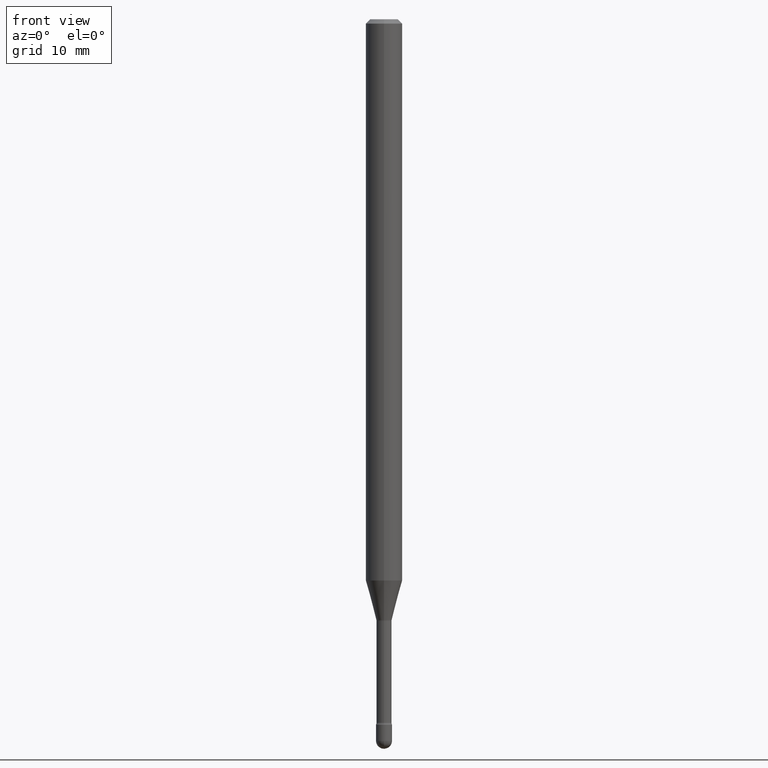
[diagram: clean part render]
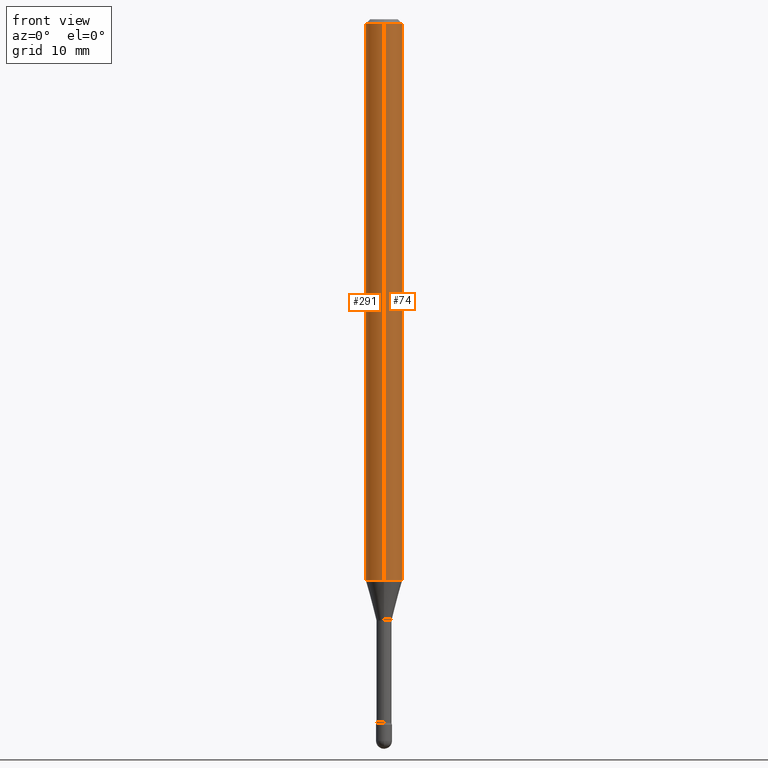
[diagram: same view with one multi-face feature highlighted, each face labeled with its STEP entity id]
A machine part, front view. The highlighted faces form ONE feature: a constant-radius fillet chain: 2 tangent blend faces with common blend radius 1.5875 mm. The faces share edges in the B-rep.
Their STEP definitions:
[1] entity #74 (Cylinder):
#9 = CARTESIAN_POINT ( 'NONE',  ( 4.440892098501093562E-16, 0.06249999999999326233, -1.923220337902601162 ) ) ;
#13 = LINE ( 'NONE', #313, #379 ) ;
#69 = EDGE_LOOP ( 'NONE', ( #85, #337, #112, #319 ) ) ;
#74 = ADVANCED_FACE ( 'NONE', ( #338 ), #389, .T. ) ;
#81 = CIRCLE ( 'NONE', #321, 0.06250000000000000000 ) ;
#85 = ORIENTED_EDGE ( 'NONE', *, *, #383, .T. ) ;
#89 = CARTESIAN_POINT ( 'NONE',  ( 4.440892098500625669E-16, 0.06250000000000000000, 2.598491668791387825E-16 ) ) ;
#94 = DIRECTION ( 'NONE',  ( -2.445394526071442665E-29, 3.491587712193716491E-15, 1.000000000000000000 ) ) ;
#96 = LINE ( 'NONE', #89, #177 ) ;
#110 = DIRECTION ( 'NONE',  ( -6.982962677686265922E-15, -1.000000000000000000, 4.370956789862821150E-15 ) ) ;
#112 = ORIENTED_EDGE ( 'NONE', *, *, #477, .F. ) ;
#115 = CARTESIAN_POINT ( 'NONE',  ( 3.668091789107184615E-31, -5.237381568290603086E-17, -0.01500000000000008271 ) ) ;
#135 = VERTEX_POINT ( 'NONE', #277 ) ;
#147 = VERTEX_POINT ( 'NONE', #395 ) ;
#157 = CIRCLE ( 'NONE', #483, 0.06250000000000000000 ) ;
#177 = VECTOR ( 'NONE', #178, 39.37007874015748143 ) ;
#178 = DIRECTION ( 'NONE',  ( -2.445394526071442665E-29, 3.491587712193716491E-15, 1.000000000000000000 ) ) ;
#206 = VERTEX_POINT ( 'NONE', #9 ) ;
#212 = DIRECTION ( 'NONE',  ( -6.982962677686265922E-15, -1.000000000000000000, 3.491587712193716491E-15 ) ) ;
#229 = EDGE_CURVE ( 'NONE', #206, #135, #96, .T. ) ;
#246 = EDGE_CURVE ( 'NONE', #147, #549, #13, .T. ) ;
#252 = DIRECTION ( 'NONE',  ( -6.982962677686265922E-15, -1.000000000000000000, 3.483106191921935554E-15 ) ) ;
#277 = CARTESIAN_POINT ( 'NONE',  ( 4.440892098501099478E-16, 0.06249999999999995143, -0.01500000000000030129 ) ) ;
#289 = CARTESIAN_POINT ( 'NONE',  ( 4.703032486736291422E-29, -6.715092499661768359E-15, -1.923220337902600940 ) ) ;
#292 = DIRECTION ( 'NONE',  ( -2.445394526071442946E-29, 3.491587712193716491E-15, 1.000000000000000000 ) ) ;
#299 = CARTESIAN_POINT ( 'NONE',  ( -4.364351673553912750E-16, -0.06250000000000005551, -0.01499999999999986587 ) ) ;
#300 = DIRECTION ( 'NONE',  ( -2.445394526071442946E-29, 3.491587712193716491E-15, 1.000000000000000000 ) ) ;
#313 = CARTESIAN_POINT ( 'NONE',  ( -4.364351673553916201E-16, -0.06250000000000000000, 6.962976309033533439E-16 ) ) ;
#319 = ORIENTED_EDGE ( 'NONE', *, *, #246, .F. ) ;
#321 = AXIS2_PLACEMENT_3D ( 'NONE', #115, #465, #252 ) ;
#337 = ORIENTED_EDGE ( 'NONE', *, *, #229, .T. ) ;
#338 = FACE_OUTER_BOUND ( 'NONE', #69, .T. ) ;
#350 = AXIS2_PLACEMENT_3D ( 'NONE', #522, #300, #212 ) ;
#379 = VECTOR ( 'NONE', #94, 39.37007874015748143 ) ;
#383 = EDGE_CURVE ( 'NONE', #147, #206, #157, .T. ) ;
#389 = CYLINDRICAL_SURFACE ( 'NONE', #350, 0.06250000000000000000 ) ;
#395 = CARTESIAN_POINT ( 'NONE',  ( -4.364351673553447815E-16, -0.06250000000000673073, -1.923220337902600718 ) ) ;
#465 = DIRECTION ( 'NONE',  ( -2.445394526071442946E-29, 3.491587712193716491E-15, 1.000000000000000000 ) ) ;
#477 = EDGE_CURVE ( 'NONE', #549, #135, #81, .T. ) ;
#483 = AXIS2_PLACEMENT_3D ( 'NONE', #289, #292, #110 ) ;
#522 = CARTESIAN_POINT ( 'NONE',  ( -1.169113584055446105E-44, 1.669184350826100908E-30, 4.780733988912460139E-16 ) ) ;
#549 = VERTEX_POINT ( 'NONE', #299 ) ;
[2] entity #291 (Cylinder):
#9 = CARTESIAN_POINT ( 'NONE',  ( 4.440892098501093562E-16, 0.06249999999999326233, -1.923220337902601162 ) ) ;
#13 = LINE ( 'NONE', #313, #379 ) ;
#19 = DIRECTION ( 'NONE',  ( -2.445394526071442946E-29, 3.491587712193716491E-15, 1.000000000000000000 ) ) ;
#38 = CIRCLE ( 'NONE', #446, 0.06250000000000000000 ) ;
#43 = ORIENTED_EDGE ( 'NONE', *, *, #246, .T. ) ;
#66 = CARTESIAN_POINT ( 'NONE',  ( -1.169113584055446105E-44, 1.669184350826100908E-30, 4.780733988912460139E-16 ) ) ;
#70 = ORIENTED_EDGE ( 'NONE', *, *, #439, .T. ) ;
#76 = DIRECTION ( 'NONE',  ( -2.445394526071442946E-29, 3.491587712193716491E-15, 1.000000000000000000 ) ) ;
#89 = CARTESIAN_POINT ( 'NONE',  ( 4.440892098500625669E-16, 0.06250000000000000000, 2.598491668791387825E-16 ) ) ;
#94 = DIRECTION ( 'NONE',  ( -2.445394526071442665E-29, 3.491587712193716491E-15, 1.000000000000000000 ) ) ;
#96 = LINE ( 'NONE', #89, #177 ) ;
#100 = CARTESIAN_POINT ( 'NONE',  ( 3.668091789107184615E-31, -5.237381568290603086E-17, -0.01500000000000008271 ) ) ;
#135 = VERTEX_POINT ( 'NONE', #277 ) ;
#147 = VERTEX_POINT ( 'NONE', #395 ) ;
#148 = DIRECTION ( 'NONE',  ( -6.982962677686265922E-15, -1.000000000000000000, 3.483106191921935554E-15 ) ) ;
#177 = VECTOR ( 'NONE', #178, 39.37007874015748143 ) ;
#178 = DIRECTION ( 'NONE',  ( -2.445394526071442665E-29, 3.491587712193716491E-15, 1.000000000000000000 ) ) ;
#202 = EDGE_LOOP ( 'NONE', ( #388, #70, #43, #281 ) ) ;
#206 = VERTEX_POINT ( 'NONE', #9 ) ;
#229 = EDGE_CURVE ( 'NONE', #206, #135, #96, .T. ) ;
#246 = EDGE_CURVE ( 'NONE', #147, #549, #13, .T. ) ;
#259 = AXIS2_PLACEMENT_3D ( 'NONE', #100, #19, #148 ) ;
#277 = CARTESIAN_POINT ( 'NONE',  ( 4.440892098501099478E-16, 0.06249999999999995143, -0.01500000000000030129 ) ) ;
#280 = DIRECTION ( 'NONE',  ( -2.445394526071442946E-29, 3.491587712193716491E-15, 1.000000000000000000 ) ) ;
#281 = ORIENTED_EDGE ( 'NONE', *, *, #315, .F. ) ;
#291 = ADVANCED_FACE ( 'NONE', ( #377 ), #458, .T. ) ;
#299 = CARTESIAN_POINT ( 'NONE',  ( -4.364351673553912750E-16, -0.06250000000000005551, -0.01499999999999986587 ) ) ;
#313 = CARTESIAN_POINT ( 'NONE',  ( -4.364351673553916201E-16, -0.06250000000000000000, 6.962976309033533439E-16 ) ) ;
#315 = EDGE_CURVE ( 'NONE', #135, #549, #564, .T. ) ;
#377 = FACE_OUTER_BOUND ( 'NONE', #202, .T. ) ;
#379 = VECTOR ( 'NONE', #94, 39.37007874015748143 ) ;
#387 = DIRECTION ( 'NONE',  ( -6.982962677686265922E-15, -1.000000000000000000, 4.370956789862821150E-15 ) ) ;
#388 = ORIENTED_EDGE ( 'NONE', *, *, #229, .F. ) ;
#395 = CARTESIAN_POINT ( 'NONE',  ( -4.364351673553447815E-16, -0.06250000000000673073, -1.923220337902600718 ) ) ;
#439 = EDGE_CURVE ( 'NONE', #206, #147, #38, .T. ) ;
#446 = AXIS2_PLACEMENT_3D ( 'NONE', #468, #76, #387 ) ;
#458 = CYLINDRICAL_SURFACE ( 'NONE', #473, 0.06250000000000000000 ) ;
#468 = CARTESIAN_POINT ( 'NONE',  ( 4.703032486736291422E-29, -6.715092499661768359E-15, -1.923220337902600940 ) ) ;
#473 = AXIS2_PLACEMENT_3D ( 'NONE', #66, #280, #503 ) ;
#503 = DIRECTION ( 'NONE',  ( -6.982962677686265922E-15, -1.000000000000000000, 3.491587712193716491E-15 ) ) ;
#549 = VERTEX_POINT ( 'NONE', #299 ) ;
#564 = CIRCLE ( 'NONE', #259, 0.06250000000000000000 ) ;